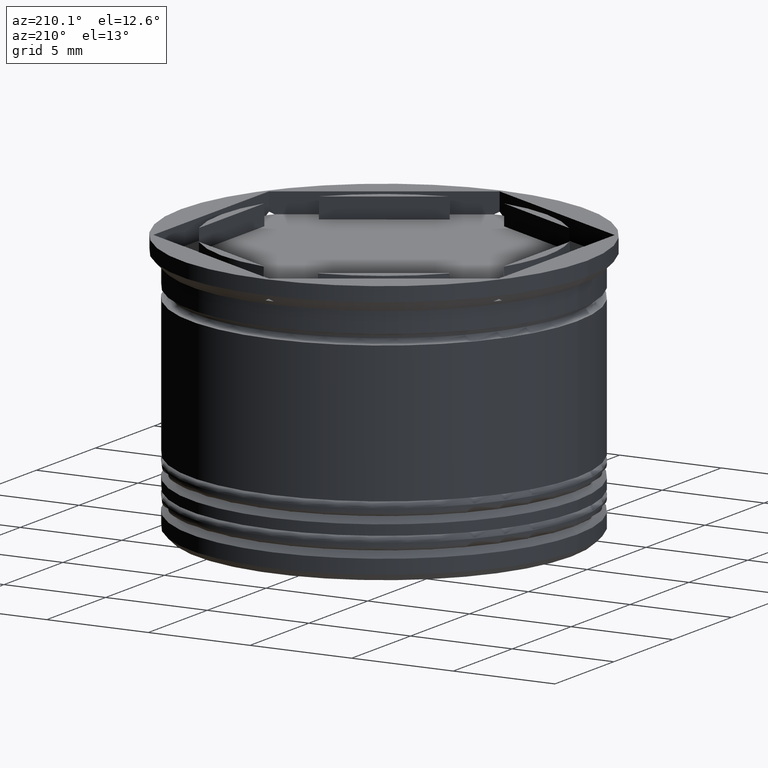
[diagram: clean part render]
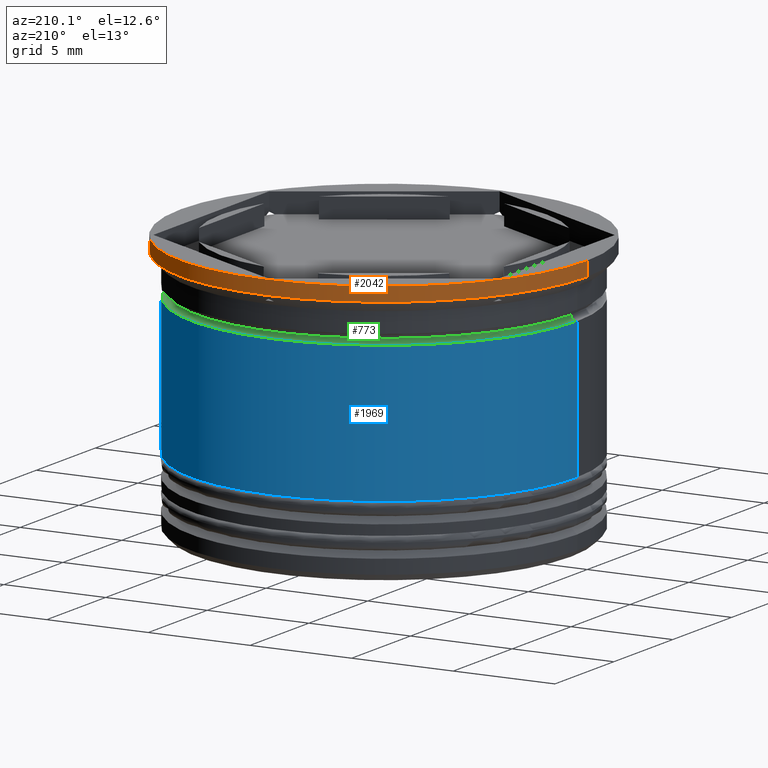
[diagram: same view with three faces highlighted in distinct colors, each labeled with its STEP entity id]
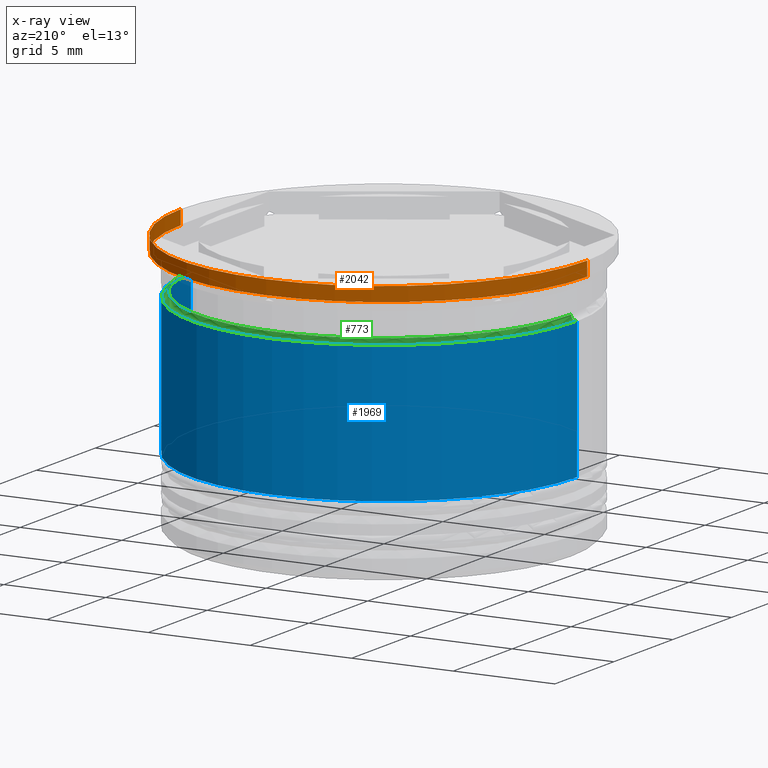
[diagram: x-ray of the same camera — body ghosted, the three highlighted faces saturated]
A machine part, auxiliary view with three faces highlighted in distinct colors.
The next image is the same camera in x-ray (body ghosted, the three faces saturated) — at least one of them is partly hidden behind the body in this view.
Their STEP definitions:

[orange] entity #2042 — the highlighted cylindrical surface (partial cylindrical patch) has radius 10 mm, axis along (-0, -0, 1).
#18 = EDGE_LOOP ( 'NONE', ( #2069, #747, #855, #1803 ) ) ;
#76 = CARTESIAN_POINT ( 'NONE',  ( -10.00000000000000000, 1.224646799147353256E-15, 0.000000000000000000 ) ) ;
#154 = EDGE_CURVE ( 'NONE', #1520, #1443, #1450, .T. ) ;
#210 = DIRECTION ( 'NONE',  ( 1.000000000000000000, 0.000000000000000000, 0.000000000000000000 ) ) ;
#234 = CIRCLE ( 'NONE', #1447, 10.00000000000000000 ) ;
#295 = CARTESIAN_POINT ( 'NONE',  ( 0.000000000000000000, 0.000000000000000000, 0.000000000000000000 ) ) ;
#306 = DIRECTION ( 'NONE',  ( 1.000000000000000000, 0.000000000000000000, 0.000000000000000000 ) ) ;
#353 = DIRECTION ( 'NONE',  ( -1.000000000000000000, 0.000000000000000000, 0.000000000000000000 ) ) ;
#485 = DIRECTION ( 'NONE',  ( -0.000000000000000000, -0.000000000000000000, 1.000000000000000000 ) ) ;
#530 = DIRECTION ( 'NONE',  ( -0.000000000000000000, -0.000000000000000000, 1.000000000000000000 ) ) ;
#696 = CARTESIAN_POINT ( 'NONE',  ( 10.00000000000000000, 0.000000000000000000, -0.6999999999999968470 ) ) ;
#747 = ORIENTED_EDGE ( 'NONE', *, *, #154, .T. ) ;
#855 = ORIENTED_EDGE ( 'NONE', *, *, #1517, .F. ) ;
#901 = LINE ( 'NONE', #1802, #993 ) ;
#993 = VECTOR ( 'NONE', #1811, 1000.000000000000000 ) ;
#995 = CARTESIAN_POINT ( 'NONE',  ( 10.00000000000000000, 0.000000000000000000, 0.000000000000000000 ) ) ;
#1135 = CARTESIAN_POINT ( 'NONE',  ( 0.000000000000000000, 0.000000000000000000, -0.6999999999999968470 ) ) ;
#1196 = CARTESIAN_POINT ( 'NONE',  ( 0.000000000000000000, 0.000000000000000000, 0.000000000000000000 ) ) ;
#1373 = AXIS2_PLACEMENT_3D ( 'NONE', #295, #485, #306 ) ;
#1443 = VERTEX_POINT ( 'NONE', #76 ) ;
#1447 = AXIS2_PLACEMENT_3D ( 'NONE', #1135, #1852, #353 ) ;
#1450 = LINE ( 'NONE', #1921, #1734 ) ;
#1517 = EDGE_CURVE ( 'NONE', #1795, #1443, #2094, .T. ) ;
#1520 = VERTEX_POINT ( 'NONE', #1807 ) ;
#1597 = EDGE_CURVE ( 'NONE', #1647, #1520, #234, .T. ) ;
#1647 = VERTEX_POINT ( 'NONE', #696 ) ;
#1702 = FACE_OUTER_BOUND ( 'NONE', #18, .T. ) ;
#1734 = VECTOR ( 'NONE', #1752, 1000.000000000000000 ) ;
#1752 = DIRECTION ( 'NONE',  ( -0.000000000000000000, -0.000000000000000000, 1.000000000000000000 ) ) ;
#1764 = EDGE_CURVE ( 'NONE', #1647, #1795, #901, .T. ) ;
#1795 = VERTEX_POINT ( 'NONE', #995 ) ;
#1802 = CARTESIAN_POINT ( 'NONE',  ( 10.00000000000000000, 0.000000000000000000, 0.000000000000000000 ) ) ;
#1803 = ORIENTED_EDGE ( 'NONE', *, *, #1764, .F. ) ;
#1807 = CARTESIAN_POINT ( 'NONE',  ( -10.00000000000000000, 1.224646799147353256E-15, -0.6999999999999968470 ) ) ;
#1811 = DIRECTION ( 'NONE',  ( -0.000000000000000000, -0.000000000000000000, 1.000000000000000000 ) ) ;
#1822 = AXIS2_PLACEMENT_3D ( 'NONE', #1196, #530, #210 ) ;
#1852 = DIRECTION ( 'NONE',  ( -0.000000000000000000, -0.000000000000000000, 1.000000000000000000 ) ) ;
#1907 = CYLINDRICAL_SURFACE ( 'NONE', #1822, 10.00000000000000000 ) ;
#1921 = CARTESIAN_POINT ( 'NONE',  ( -10.00000000000000000, 1.224646799147353256E-15, 0.000000000000000000 ) ) ;
#2042 = ADVANCED_FACE ( 'NONE', ( #1702 ), #1907, .T. ) ;
#2069 = ORIENTED_EDGE ( 'NONE', *, *, #1597, .T. ) ;
#2094 = CIRCLE ( 'NONE', #1373, 10.00000000000000000 ) ;

[blue] entity #1969 — the highlighted cylindrical surface (partial cylindrical patch) has radius 9.5 mm, axis along (-0, -0, 1).
#28 = VERTEX_POINT ( 'NONE', #1231 ) ;
#33 = DIRECTION ( 'NONE',  ( 1.000000000000000000, 0.000000000000000000, 0.000000000000000000 ) ) ;
#74 = ORIENTED_EDGE ( 'NONE', *, *, #1860, .T. ) ;
#111 = VECTOR ( 'NONE', #1531, 1000.000000000000000 ) ;
#114 = CYLINDRICAL_SURFACE ( 'NONE', #1170, 9.500000000000000000 ) ;
#199 = CARTESIAN_POINT ( 'NONE',  ( -9.500000000000000000, 1.163414459189985485E-15, 0.000000000000000000 ) ) ;
#291 = VERTEX_POINT ( 'NONE', #1167 ) ;
#385 = DIRECTION ( 'NONE',  ( -0.000000000000000000, -0.000000000000000000, 1.000000000000000000 ) ) ;
#388 = ORIENTED_EDGE ( 'NONE', *, *, #886, .F. ) ;
#418 = DIRECTION ( 'NONE',  ( 1.000000000000000000, 0.000000000000000000, 0.000000000000000000 ) ) ;
#459 = CARTESIAN_POINT ( 'NONE',  ( 0.000000000000000000, 0.000000000000000000, -9.500000000000000000 ) ) ;
#464 = CARTESIAN_POINT ( 'NONE',  ( -9.500000000000001776, 1.163414459189985682E-15, -9.500000000000000000 ) ) ;
#481 = CIRCLE ( 'NONE', #1066, 9.500000000000001776 ) ;
#556 = DIRECTION ( 'NONE',  ( -0.000000000000000000, -0.000000000000000000, 1.000000000000000000 ) ) ;
#829 = CARTESIAN_POINT ( 'NONE',  ( 9.500000000000000000, 0.000000000000000000, 0.000000000000000000 ) ) ;
#836 = VERTEX_POINT ( 'NONE', #1178 ) ;
#886 = EDGE_CURVE ( 'NONE', #291, #28, #1675, .T. ) ;
#891 = CIRCLE ( 'NONE', #1094, 9.499999999999998224 ) ;
#912 = FACE_OUTER_BOUND ( 'NONE', #1429, .T. ) ;
#1002 = EDGE_CURVE ( 'NONE', #28, #836, #891, .T. ) ;
#1066 = AXIS2_PLACEMENT_3D ( 'NONE', #459, #1419, #1077 ) ;
#1077 = DIRECTION ( 'NONE',  ( 1.000000000000000000, 0.000000000000000000, 0.000000000000000000 ) ) ;
#1094 = AXIS2_PLACEMENT_3D ( 'NONE', #1926, #556, #33 ) ;
#1167 = CARTESIAN_POINT ( 'NONE',  ( 9.500000000000001776, 0.000000000000000000, -9.500000000000000000 ) ) ;
#1170 = AXIS2_PLACEMENT_3D ( 'NONE', #1942, #385, #418 ) ;
#1178 = CARTESIAN_POINT ( 'NONE',  ( -9.499999999999998224, 1.163414459189985485E-15, -2.700000000000000178 ) ) ;
#1194 = ORIENTED_EDGE ( 'NONE', *, *, #2080, .T. ) ;
#1231 = CARTESIAN_POINT ( 'NONE',  ( 9.499999999999998224, 0.000000000000000000, -2.700000000000000178 ) ) ;
#1252 = VERTEX_POINT ( 'NONE', #464 ) ;
#1259 = ORIENTED_EDGE ( 'NONE', *, *, #1002, .F. ) ;
#1419 = DIRECTION ( 'NONE',  ( -0.000000000000000000, -0.000000000000000000, 1.000000000000000000 ) ) ;
#1429 = EDGE_LOOP ( 'NONE', ( #74, #1194, #1259, #388 ) ) ;
#1514 = VECTOR ( 'NONE', #1705, 1000.000000000000000 ) ;
#1531 = DIRECTION ( 'NONE',  ( -0.000000000000000000, -0.000000000000000000, 1.000000000000000000 ) ) ;
#1541 = LINE ( 'NONE', #199, #111 ) ;
#1675 = LINE ( 'NONE', #829, #1514 ) ;
#1705 = DIRECTION ( 'NONE',  ( -0.000000000000000000, -0.000000000000000000, 1.000000000000000000 ) ) ;
#1860 = EDGE_CURVE ( 'NONE', #291, #1252, #481, .T. ) ;
#1926 = CARTESIAN_POINT ( 'NONE',  ( 0.000000000000000000, 0.000000000000000000, -2.700000000000000178 ) ) ;
#1942 = CARTESIAN_POINT ( 'NONE',  ( 0.000000000000000000, 0.000000000000000000, 0.000000000000000000 ) ) ;
#1969 = ADVANCED_FACE ( 'NONE', ( #912 ), #114, .T. ) ;
#2080 = EDGE_CURVE ( 'NONE', #1252, #836, #1541, .T. ) ;

[green] entity #773 — the highlighted toroidal blend (fillet) surface has major radius 9.45 mm and minor (blend) radius 0.25 mm.
#36 = EDGE_CURVE ( 'NONE', #1433, #1622, #753, .T. ) ;
#58 = CIRCLE ( 'NONE', #400, 0.2500000000000002220 ) ;
#83 = EDGE_LOOP ( 'NONE', ( #1813, #2161, #397, #1532 ) ) ;
#96 = CARTESIAN_POINT ( 'NONE',  ( -9.200000000000002842, 1.126675055215565414E-15, -2.449999999999999734 ) ) ;
#119 = CARTESIAN_POINT ( 'NONE',  ( 9.450000000000002842, 0.000000000000000000, -2.449999999999999734 ) ) ;
#183 = CARTESIAN_POINT ( 'NONE',  ( -9.450000000000002842, 1.157291225194249201E-15, -2.449999999999999734 ) ) ;
#260 = AXIS2_PLACEMENT_3D ( 'NONE', #183, #1684, #838 ) ;
#320 = EDGE_CURVE ( 'NONE', #1089, #1433, #649, .T. ) ;
#397 = ORIENTED_EDGE ( 'NONE', *, *, #36, .F. ) ;
#400 = AXIS2_PLACEMENT_3D ( 'NONE', #119, #1800, #1793 ) ;
#477 = DIRECTION ( 'NONE',  ( -0.000000000000000000, -0.000000000000000000, 1.000000000000000000 ) ) ;
#649 = CIRCLE ( 'NONE', #260, 0.2500000000000002220 ) ;
#655 = DIRECTION ( 'NONE',  ( 1.000000000000000000, 0.000000000000000000, 0.000000000000000000 ) ) ;
#715 = TOROIDAL_SURFACE ( 'NONE', #815, 9.450000000000002842, 0.2500000000000002220 ) ;
#753 = CIRCLE ( 'NONE', #877, 9.450000000000002842 ) ;
#773 = ADVANCED_FACE ( 'NONE', ( #1124 ), #715, .F. ) ;
#815 = AXIS2_PLACEMENT_3D ( 'NONE', #2144, #477, #1600 ) ;
#838 = DIRECTION ( 'NONE',  ( -1.000000000000000000, 1.224646799147349509E-16, 0.000000000000000000 ) ) ;
#868 = DIRECTION ( 'NONE',  ( 0.000000000000000000, 0.000000000000000000, -1.000000000000000000 ) ) ;
#877 = AXIS2_PLACEMENT_3D ( 'NONE', #1553, #868, #2039 ) ;
#961 = CIRCLE ( 'NONE', #1559, 9.200000000000002842 ) ;
#1076 = VERTEX_POINT ( 'NONE', #1409 ) ;
#1089 = VERTEX_POINT ( 'NONE', #96 ) ;
#1124 = FACE_OUTER_BOUND ( 'NONE', #83, .T. ) ;
#1192 = EDGE_CURVE ( 'NONE', #1076, #1622, #58, .T. ) ;
#1354 = EDGE_CURVE ( 'NONE', #1076, #1089, #961, .T. ) ;
#1368 = CARTESIAN_POINT ( 'NONE',  ( -9.450000000000002842, 1.157291225194249201E-15, -2.700000000000000178 ) ) ;
#1409 = CARTESIAN_POINT ( 'NONE',  ( 9.200000000000002842, 0.000000000000000000, -2.449999999999999734 ) ) ;
#1433 = VERTEX_POINT ( 'NONE', #1368 ) ;
#1473 = DIRECTION ( 'NONE',  ( -0.000000000000000000, -0.000000000000000000, 1.000000000000000000 ) ) ;
#1526 = CARTESIAN_POINT ( 'NONE',  ( 9.450000000000002842, 0.000000000000000000, -2.700000000000000178 ) ) ;
#1532 = ORIENTED_EDGE ( 'NONE', *, *, #320, .F. ) ;
#1553 = CARTESIAN_POINT ( 'NONE',  ( 0.000000000000000000, 0.000000000000000000, -2.700000000000000178 ) ) ;
#1559 = AXIS2_PLACEMENT_3D ( 'NONE', #1653, #1473, #655 ) ;
#1600 = DIRECTION ( 'NONE',  ( 1.000000000000000000, 0.000000000000000000, 0.000000000000000000 ) ) ;
#1622 = VERTEX_POINT ( 'NONE', #1526 ) ;
#1653 = CARTESIAN_POINT ( 'NONE',  ( 0.000000000000000000, 0.000000000000000000, -2.449999999999999734 ) ) ;
#1684 = DIRECTION ( 'NONE',  ( 1.224646799147353207E-16, 1.000000000000000000, 0.000000000000000000 ) ) ;
#1793 = DIRECTION ( 'NONE',  ( 0.000000000000000000, 0.000000000000000000, -1.000000000000000000 ) ) ;
#1800 = DIRECTION ( 'NONE',  ( 0.000000000000000000, -1.000000000000000000, 0.000000000000000000 ) ) ;
#1813 = ORIENTED_EDGE ( 'NONE', *, *, #1354, .F. ) ;
#2039 = DIRECTION ( 'NONE',  ( -1.000000000000000000, 0.000000000000000000, 0.000000000000000000 ) ) ;
#2144 = CARTESIAN_POINT ( 'NONE',  ( 0.000000000000000000, 0.000000000000000000, -2.449999999999999734 ) ) ;
#2161 = ORIENTED_EDGE ( 'NONE', *, *, #1192, .T. ) ;